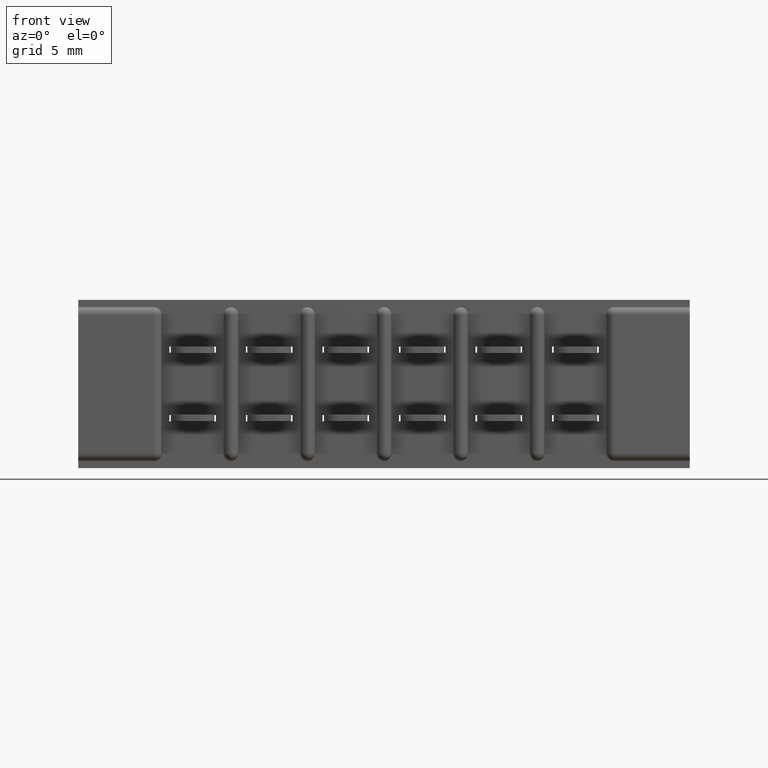
[diagram: clean part render]
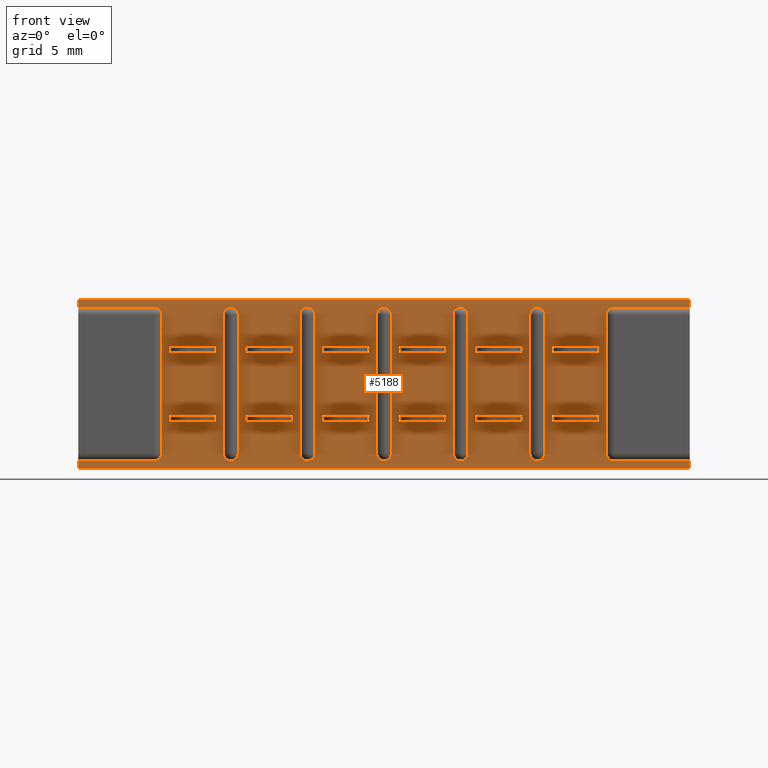
[diagram: same view with one face highlighted and labeled with its STEP entity id]
A machine part, front view. The second image highlights one B-rep face of the part: STEP entity #5188.
In plain terms, the highlighted planar face has unit normal (0, 1, 0).
Its self-contained STEP definition (entity closure, byte-faithful):
#2 = CARTESIAN_POINT ( 'NONE',  ( 1.107500000000003500, 0.03100000000000000000, -0.2480000000000003300 ) ) ;
#15 = DIRECTION ( 'NONE',  ( 0.0000000000000000000, 1.000000000000000000, 0.0000000000000000000 ) ) ;
#38 = VERTEX_POINT ( 'NONE', #3133 ) ;
#53 = DIRECTION ( 'NONE',  ( -6.030569522437654900E-016, 0.0000000000000000000, -1.000000000000000000 ) ) ;
#64 = VECTOR ( 'NONE', #206, 39.37007874015748100 ) ;
#83 = AXIS2_PLACEMENT_3D ( 'NONE', #5065, #9308, #5098 ) ;
#89 = FACE_OUTER_BOUND ( 'NONE', #4346, .T. ) ;
#91 = LINE ( 'NONE', #9347, #10635 ) ;
#95 = CIRCLE ( 'NONE', #7275, 0.01499999999999999900 ) ;
#99 = ORIENTED_EDGE ( 'NONE', *, *, #3039, .F. ) ;
#103 = DIRECTION ( 'NONE',  ( 1.000000000000000000, 0.0000000000000000000, -1.797268416884422300E-016 ) ) ;
#107 = CARTESIAN_POINT ( 'NONE',  ( 1.389000000000002900, 0.03100000000000000000, -0.01499999999999997700 ) ) ;
#119 = CIRCLE ( 'NONE', #6637, 0.01500000000000001200 ) ;
#126 = VECTOR ( 'NONE', #3026, 39.37007874015748100 ) ;
#128 = DIRECTION ( 'NONE',  ( -6.030569522437654900E-016, 0.0000000000000000000, -1.000000000000000000 ) ) ;
#144 = ORIENTED_EDGE ( 'NONE', *, *, #9622, .F. ) ;
#147 = VERTEX_POINT ( 'NONE', #9374 ) ;
#149 = CARTESIAN_POINT ( 'NONE',  ( 0.6240000000000027700, 0.03100000000000002400, -0.3130000000000000600 ) ) ;
#152 = AXIS2_PLACEMENT_3D ( 'NONE', #8679, #3777, #2966 ) ;
#153 = CARTESIAN_POINT ( 'NONE',  ( 1.092000000000003000, 0.03100000000000002400, -0.3130000000000000600 ) ) ;
#159 = EDGE_CURVE ( 'NONE', #6793, #7732, #8695, .T. ) ;
#175 = ORIENTED_EDGE ( 'NONE', *, *, #3297, .T. ) ;
#186 = CARTESIAN_POINT ( 'NONE',  ( 1.077000000000002800, 0.03100000000000000000, -0.01499999999999997700 ) ) ;
#193 = AXIS2_PLACEMENT_3D ( 'NONE', #3398, #915, #9124 ) ;
#200 = DIRECTION ( 'NONE',  ( 0.0000000000000000000, 1.000000000000000000, 0.0000000000000000000 ) ) ;
#201 = FACE_BOUND ( 'NONE', #3113, .T. ) ;
#202 = VECTOR ( 'NONE', #265, 39.37007874015748100 ) ;
#206 = DIRECTION ( 'NONE',  ( -1.000000000000000000, 0.0000000000000000000, -7.189073667537689000E-016 ) ) ;
#225 = VECTOR ( 'NONE', #783, 39.37007874015748100 ) ;
#239 = LINE ( 'NONE', #7547, #9506 ) ;
#241 = DIRECTION ( 'NONE',  ( 0.0000000000000000000, 0.0000000000000000000, 1.000000000000000000 ) ) ;
#243 = VERTEX_POINT ( 'NONE', #6351 ) ;
#265 = DIRECTION ( 'NONE',  ( 0.0000000000000000000, -0.0000000000000000000, 1.000000000000000000 ) ) ;
#320 = EDGE_LOOP ( 'NONE', ( #362, #7651, #6207, #9693, #5234, #7409 ) ) ;
#334 = VERTEX_POINT ( 'NONE', #7268 ) ;
#353 = ORIENTED_EDGE ( 'NONE', *, *, #3111, .T. ) ;
#362 = ORIENTED_EDGE ( 'NONE', *, *, #1267, .T. ) ;
#392 = DIRECTION ( 'NONE',  ( 0.0000000000000000000, -0.0000000000000000000, 1.000000000000000000 ) ) ;
#398 = EDGE_CURVE ( 'NONE', #1114, #3840, #8806, .T. ) ;
#406 = DIRECTION ( 'NONE',  ( 0.0000000000000000000, 0.0000000000000000000, 1.000000000000000000 ) ) ;
#407 = EDGE_CURVE ( 'NONE', #4585, #5116, #4406, .T. ) ;
#416 = CARTESIAN_POINT ( 'NONE',  ( 0.5940000000000029700, 0.03100000000000002400, -0.02999999999999995400 ) ) ;
#434 = LINE ( 'NONE', #5655, #8676 ) ;
#443 = AXIS2_PLACEMENT_3D ( 'NONE', #4644, #9615, #10414 ) ;
#457 = DIRECTION ( 'NONE',  ( 1.000000000000000000, 0.0000000000000000000, -1.797268416884422300E-016 ) ) ;
#470 = CIRCLE ( 'NONE', #9623, 0.01500000000000001200 ) ;
#489 = EDGE_LOOP ( 'NONE', ( #1296, #9662, #1258, #1797, #4908, #1585 ) ) ;
#494 = CARTESIAN_POINT ( 'NONE',  ( 1.263500000000001400, 0.03100000000000002400, -0.05850000000000034300 ) ) ;
#496 = VERTEX_POINT ( 'NONE', #153 ) ;
#507 = CARTESIAN_POINT ( 'NONE',  ( 0.5940000000000028600, 0.03100000000000002400, -0.4680000000000008600 ) ) ;
#514 = VECTOR ( 'NONE', #3366, 39.37007874015748100 ) ;
#519 = ORIENTED_EDGE ( 'NONE', *, *, #5228, .T. ) ;
#521 = ORIENTED_EDGE ( 'NONE', *, *, #7861, .F. ) ;
#535 = ORIENTED_EDGE ( 'NONE', *, *, #5459, .T. ) ;
#538 = VECTOR ( 'NONE', #2880, 39.37007874015748100 ) ;
#540 = VECTOR ( 'NONE', #2363, 39.37007874015748100 ) ;
#560 = ORIENTED_EDGE ( 'NONE', *, *, #7386, .F. ) ;
#567 = CARTESIAN_POINT ( 'NONE',  ( 1.374000000000002800, 0.03100000000000002400, -0.02999999999999995400 ) ) ;
#568 = CARTESIAN_POINT ( 'NONE',  ( 1.202500000000001200, 0.03100000000000002400, -0.2350000000000003800 ) ) ;
#582 = VERTEX_POINT ( 'NONE', #9606 ) ;
#589 = CARTESIAN_POINT ( 'NONE',  ( 0.5785000000000013500, 0.03100000000000000000, -0.09500000000000025100 ) ) ;
#604 = CARTESIAN_POINT ( 'NONE',  ( 1.842000000000000700, 0.03100000000000000000, -0.01499999999999997700 ) ) ;
#609 = DIRECTION ( 'NONE',  ( 0.0000000000000000000, 0.0000000000000000000, 1.000000000000000000 ) ) ;
#610 = DIRECTION ( 'NONE',  ( 0.0000000000000000000, 1.000000000000000000, 0.0000000000000000000 ) ) ;
#629 = ORIENTED_EDGE ( 'NONE', *, *, #1488, .F. ) ;
#641 = EDGE_LOOP ( 'NONE', ( #2702, #10400, #10198, #6013, #4740, #4811 ) ) ;
#655 = ORIENTED_EDGE ( 'NONE', *, *, #1459, .F. ) ;
#661 = DIRECTION ( 'NONE',  ( 0.0000000000000000000, 0.0000000000000000000, 1.000000000000000000 ) ) ;
#681 = CARTESIAN_POINT ( 'NONE',  ( 0.9210000000000028200, 0.03100000000000000000, -0.01499999999999997700 ) ) ;
#702 = AXIS2_PLACEMENT_3D ( 'NONE', #7416, #15, #8266 ) ;
#708 = EDGE_LOOP ( 'NONE', ( #5685, #6607, #3883, #6480 ) ) ;
#717 = VERTEX_POINT ( 'NONE', #4647 ) ;
#736 = EDGE_CURVE ( 'NONE', #7552, #3887, #7375, .T. ) ;
#750 = CARTESIAN_POINT ( 'NONE',  ( 0.8905000000000012900, 0.03100000000000002400, -0.2350000000000003800 ) ) ;
#757 = CARTESIAN_POINT ( 'NONE',  ( 1.077000000000002800, 0.03100000000000000000, -0.3130000000000000600 ) ) ;
#761 = EDGE_CURVE ( 'NONE', #5749, #7164, #5955, .T. ) ;
#774 = DIRECTION ( 'NONE',  ( 0.0000000000000000000, 1.000000000000000000, 0.0000000000000000000 ) ) ;
#783 = DIRECTION ( 'NONE',  ( 0.0000000000000000000, -0.0000000000000000000, 1.000000000000000000 ) ) ;
#784 = VECTOR ( 'NONE', #3490, 39.37007874015748100 ) ;
#823 = VERTEX_POINT ( 'NONE', #3246 ) ;
#826 = DIRECTION ( 'NONE',  ( -1.000000000000000000, 0.0000000000000000000, -0.0000000000000000000 ) ) ;
#839 = CARTESIAN_POINT ( 'NONE',  ( 1.248000000000002900, 0.03100000000000002400, -0.02999999999999995400 ) ) ;
#840 = CARTESIAN_POINT ( 'NONE',  ( 1.062000000000002700, 0.03100000000000002400, -0.02999999999999995400 ) ) ;
#854 = CARTESIAN_POINT ( 'NONE',  ( 1.046500000000001300, 0.03100000000000002400, -0.05850000000000034300 ) ) ;
#865 = DIRECTION ( 'NONE',  ( 0.0000000000000000000, -0.0000000000000000000, 1.000000000000000000 ) ) ;
#869 = FACE_BOUND ( 'NONE', #320, .T. ) ;
#879 = DIRECTION ( 'NONE',  ( 1.000000000000000000, 0.0000000000000000000, -1.078361050130653400E-015 ) ) ;
#893 = EDGE_CURVE ( 'NONE', #823, #38, #3772, .T. ) ;
#915 = DIRECTION ( 'NONE',  ( 0.0000000000000000000, 1.000000000000000000, 0.0000000000000000000 ) ) ;
#946 = LINE ( 'NONE', #8096, #9291 ) ;
#980 = EDGE_CURVE ( 'NONE', #1698, #6825, #8027, .T. ) ;
#982 = VERTEX_POINT ( 'NONE', #2979 ) ;
#1010 = CARTESIAN_POINT ( 'NONE',  ( 1.263500000000003400, 0.03100000000000000000, -0.2480000000000003300 ) ) ;
#1034 = CIRCLE ( 'NONE', #9966, 0.01499999999999999900 ) ;
#1036 = CARTESIAN_POINT ( 'NONE',  ( 0.7650000000000029000, 0.03100000000000000000, -0.3280000000000000100 ) ) ;
#1048 = DIRECTION ( 'NONE',  ( 0.0000000000000000000, 0.0000000000000000000, 1.000000000000000000 ) ) ;
#1055 = VERTEX_POINT ( 'NONE', #2941 ) ;
#1074 = CARTESIAN_POINT ( 'NONE',  ( 0.6090000000000027600, 0.03100000000000000000, -0.01499999999999997700 ) ) ;
#1079 = VERTEX_POINT ( 'NONE', #4517 ) ;
#1081 = EDGE_CURVE ( 'NONE', #496, #6782, #8411, .T. ) ;
#1102 = FACE_BOUND ( 'NONE', #2764, .T. ) ;
#1114 = VERTEX_POINT ( 'NONE', #3086 ) ;
#1128 = CARTESIAN_POINT ( 'NONE',  ( 1.842000000000000700, 0.03100000000000000000, 0.0000000000000000000 ) ) ;
#1131 = CARTESIAN_POINT ( 'NONE',  ( 1.218000000000002900, 0.03100000000000002400, -0.3130000000000000600 ) ) ;
#1133 = EDGE_CURVE ( 'NONE', #10437, #7969, #10602, .T. ) ;
#1163 = EDGE_CURVE ( 'NONE', #6168, #6793, #5949, .T. ) ;
#1184 = DIRECTION ( 'NONE',  ( 0.0000000000000000000, -0.0000000000000000000, 1.000000000000000000 ) ) ;
#1210 = CARTESIAN_POINT ( 'NONE',  ( 0.5785000000000013500, 0.03100000000000002400, -0.1080000000000003200 ) ) ;
#1240 = CARTESIAN_POINT ( 'NONE',  ( 0.8905000000000012900, 0.03100000000000002400, -0.05850000000000034300 ) ) ;
#1246 = VERTEX_POINT ( 'NONE', #7633 ) ;
#1248 = VERTEX_POINT ( 'NONE', #10195 ) ;
#1258 = ORIENTED_EDGE ( 'NONE', *, *, #5472, .T. ) ;
#1260 = EDGE_LOOP ( 'NONE', ( #6358, #3266, #655, #7832 ) ) ;
#1267 = EDGE_CURVE ( 'NONE', #8202, #2425, #2751, .T. ) ;
#1296 = ORIENTED_EDGE ( 'NONE', *, *, #761, .T. ) ;
#1308 = DIRECTION ( 'NONE',  ( 0.0000000000000000000, 1.000000000000000000, 0.0000000000000000000 ) ) ;
#1321 = DIRECTION ( 'NONE',  ( 0.0000000000000000000, 0.0000000000000000000, 1.000000000000000000 ) ) ;
#1340 = DIRECTION ( 'NONE',  ( 0.0000000000000000000, 0.0000000000000000000, 1.000000000000000000 ) ) ;
#1399 = DIRECTION ( 'NONE',  ( 0.0000000000000000000, 1.000000000000000000, 0.0000000000000000000 ) ) ;
#1411 = EDGE_LOOP ( 'NONE', ( #3419, #10074, #8117, #5904 ) ) ;
#1431 = AXIS2_PLACEMENT_3D ( 'NONE', #3678, #2029, #6092 ) ;
#1437 = CARTESIAN_POINT ( 'NONE',  ( 0.6240000000000030000, 0.03100000000000002400, -0.02999999999999995400 ) ) ;
#1445 = EDGE_CURVE ( 'NONE', #6788, #5703, #8527, .T. ) ;
#1459 = EDGE_CURVE ( 'NONE', #2510, #717, #2637, .T. ) ;
#1484 = ORIENTED_EDGE ( 'NONE', *, *, #5817, .F. ) ;
#1488 = EDGE_CURVE ( 'NONE', #7968, #4680, #2871, .T. ) ;
#1491 = LINE ( 'NONE', #9329, #6453 ) ;
#1497 = CARTESIAN_POINT ( 'NONE',  ( 1.358500000000001400, 0.03100000000000002400, -0.05850000000000034300 ) ) ;
#1519 = VERTEX_POINT ( 'NONE', #1725 ) ;
#1528 = CARTESIAN_POINT ( 'NONE',  ( 0.7345000000000013700, 0.03100000000000002400, -0.05850000000000034300 ) ) ;
#1541 = DIRECTION ( 'NONE',  ( 0.0000000000000000000, -0.0000000000000000000, 1.000000000000000000 ) ) ;
#1585 = ORIENTED_EDGE ( 'NONE', *, *, #6680, .T. ) ;
#1596 = VERTEX_POINT ( 'NONE', #1935 ) ;
#1605 = VECTOR ( 'NONE', #4157, 39.37007874015748100 ) ;
#1607 = ORIENTED_EDGE ( 'NONE', *, *, #736, .F. ) ;
#1618 = CARTESIAN_POINT ( 'NONE',  ( 0.2979999999999996500, 0.03100000000000000000, -0.3430000000000000300 ) ) ;
#1643 = LINE ( 'NONE', #3792, #10364 ) ;
#1664 = EDGE_CURVE ( 'NONE', #3365, #1248, #7601, .T. ) ;
#1696 = CARTESIAN_POINT ( 'NONE',  ( 1.233000000000002800, 0.03100000000000000000, -0.3130000000000000600 ) ) ;
#1697 = VERTEX_POINT ( 'NONE', #6848 ) ;
#1698 = VERTEX_POINT ( 'NONE', #2796 ) ;
#1703 = VERTEX_POINT ( 'NONE', #1131 ) ;
#1722 = AXIS2_PLACEMENT_3D ( 'NONE', #10410, #610, #7005 ) ;
#1725 = CARTESIAN_POINT ( 'NONE',  ( 0.7500000000000028900, 0.03100000000000002400, -0.02999999999999995400 ) ) ;
#1737 = EDGE_CURVE ( 'NONE', #1698, #9996, #3625, .T. ) ;
#1744 = CARTESIAN_POINT ( 'NONE',  ( 1.358500000000001400, 0.03100000000000002400, -0.1080000000000003200 ) ) ;
#1757 = DIRECTION ( 'NONE',  ( 0.0000000000000000000, 1.000000000000000000, 0.0000000000000000000 ) ) ;
#1772 = VECTOR ( 'NONE', #7904, 39.37007874015748100 ) ;
#1776 = VERTEX_POINT ( 'NONE', #9646 ) ;
#1785 = VECTOR ( 'NONE', #7085, 39.37007874015748100 ) ;
#1797 = ORIENTED_EDGE ( 'NONE', *, *, #9193, .T. ) ;
#1799 = ORIENTED_EDGE ( 'NONE', *, *, #3844, .T. ) ;
#1807 = LINE ( 'NONE', #5052, #10275 ) ;
#1810 = ORIENTED_EDGE ( 'NONE', *, *, #4667, .F. ) ;
#1823 = CARTESIAN_POINT ( 'NONE',  ( 0.9060000000000028000, 0.03100000000000002400, -0.3130000000000000600 ) ) ;
#1827 = EDGE_LOOP ( 'NONE', ( #1799, #519, #5138, #5159, #7135, #4244 ) ) ;
#1834 = LINE ( 'NONE', #7933, #538 ) ;
#1836 = CARTESIAN_POINT ( 'NONE',  ( 0.4680000000000027500, 0.03100000000000002400, -0.4680000000000008600 ) ) ;
#1837 = VERTEX_POINT ( 'NONE', #7996 ) ;
#1848 = CARTESIAN_POINT ( 'NONE',  ( 1.202500000000001200, 0.03100000000000002400, -0.05850000000000034300 ) ) ;
#1850 = LINE ( 'NONE', #3364, #1605 ) ;
#1870 = ORIENTED_EDGE ( 'NONE', *, *, #5813, .T. ) ;
#1874 = VERTEX_POINT ( 'NONE', #7761 ) ;
#1901 = VERTEX_POINT ( 'NONE', #7865 ) ;
#1918 = DIRECTION ( 'NONE',  ( 0.0000000000000000000, 0.0000000000000000000, 1.000000000000000000 ) ) ;
#1920 = CARTESIAN_POINT ( 'NONE',  ( 1.358500000000001400, 0.03100000000000002400, -0.05850000000000034300 ) ) ;
#1935 = CARTESIAN_POINT ( 'NONE',  ( 0.5785000000000013500, 0.03100000000000002400, -0.2350000000000003800 ) ) ;
#2010 = VECTOR ( 'NONE', #6052, 39.37007874015748100 ) ;
#2016 = CARTESIAN_POINT ( 'NONE',  ( 1.263500000000003400, 0.03100000000000000000, -0.09500000000000032000 ) ) ;
#2018 = VECTOR ( 'NONE', #7364, 39.37007874015748100 ) ;
#2019 = LINE ( 'NONE', #1848, #7304 ) ;
#2020 = EDGE_CURVE ( 'NONE', #6524, #10577, #10307, .T. ) ;
#2029 = DIRECTION ( 'NONE',  ( 0.0000000000000000000, 1.000000000000000000, 0.0000000000000000000 ) ) ;
#2054 = AXIS2_PLACEMENT_3D ( 'NONE', #7847, #5550, #3865 ) ;
#2072 = CARTESIAN_POINT ( 'NONE',  ( 1.107500000000003500, 0.03100000000000000000, -0.1080000000000003000 ) ) ;
#2087 = CARTESIAN_POINT ( 'NONE',  ( 0.7500000000000028900, 0.03100000000000002400, -0.4680000000000008600 ) ) ;
#2133 = DIRECTION ( 'NONE',  ( 0.0000000000000000000, 1.000000000000000000, 0.0000000000000000000 ) ) ;
#2153 = LINE ( 'NONE', #2849, #5620 ) ;
#2157 = DIRECTION ( 'NONE',  ( 0.0000000000000000000, 0.0000000000000000000, 1.000000000000000000 ) ) ;
#2173 = EDGE_CURVE ( 'NONE', #7969, #1596, #2734, .T. ) ;
#2176 = CARTESIAN_POINT ( 'NONE',  ( 1.358500000000001400, 0.03100000000000000000, -0.2480000000000004400 ) ) ;
#2205 = CARTESIAN_POINT ( 'NONE',  ( 0.9360000000000029400, 0.03100000000000002400, -0.3130000000000000600 ) ) ;
#2214 = EDGE_CURVE ( 'NONE', #7552, #5102, #1834, .T. ) ;
#2227 = EDGE_CURVE ( 'NONE', #6782, #982, #6421, .T. ) ;
#2269 = LINE ( 'NONE', #5326, #9964 ) ;
#2286 = DIRECTION ( 'NONE',  ( 0.0000000000000000000, 1.000000000000000000, 0.0000000000000000000 ) ) ;
#2289 = EDGE_LOOP ( 'NONE', ( #9727, #6732, #521, #1607 ) ) ;
#2296 = LINE ( 'NONE', #4887, #7792 ) ;
#2304 = AXIS2_PLACEMENT_3D ( 'NONE', #1696, #4016, #9051 ) ;
#2306 = VERTEX_POINT ( 'NONE', #5348 ) ;
#2346 = VECTOR ( 'NONE', #5641, 39.37007874015748100 ) ;
#2358 = CARTESIAN_POINT ( 'NONE',  ( 0.7955000000000033200, 0.03100000000000000000, -0.09500000000000032000 ) ) ;
#2363 = DIRECTION ( 'NONE',  ( 0.0000000000000000000, -0.0000000000000000000, 1.000000000000000000 ) ) ;
#2392 = CARTESIAN_POINT ( 'NONE',  ( 0.4835000000000013200, 0.03100000000000002400, -0.1080000000000003000 ) ) ;
#2421 = FACE_BOUND ( 'NONE', #641, .T. ) ;
#2425 = VERTEX_POINT ( 'NONE', #681 ) ;
#2430 = EDGE_CURVE ( 'NONE', #6718, #7371, #7848, .T. ) ;
#2440 = ORIENTED_EDGE ( 'NONE', *, *, #2020, .T. ) ;
#2470 = CARTESIAN_POINT ( 'NONE',  ( 0.4530000000000027900, 0.03100000000000000000, -0.3130000000000000600 ) ) ;
#2479 = CARTESIAN_POINT ( 'NONE',  ( 0.8905000000000012900, 0.03100000000000000000, -0.2480000000000004400 ) ) ;
#2486 = VERTEX_POINT ( 'NONE', #186 ) ;
#2503 = LINE ( 'NONE', #3638, #3262 ) ;
#2510 = VERTEX_POINT ( 'NONE', #6001 ) ;
#2519 = LINE ( 'NONE', #9988, #64 ) ;
#2541 = DIRECTION ( 'NONE',  ( 0.0000000000000000000, 0.0000000000000000000, 1.000000000000000000 ) ) ;
#2551 = EDGE_CURVE ( 'NONE', #4680, #3190, #3119, .T. ) ;
#2575 = ORIENTED_EDGE ( 'NONE', *, *, #3608, .F. ) ;
#2594 = CARTESIAN_POINT ( 'NONE',  ( 0.4680000000000028600, 0.03100000000000002400, -0.3130000000000000600 ) ) ;
#2612 = LINE ( 'NONE', #8915, #2346 ) ;
#2637 = LINE ( 'NONE', #8333, #5440 ) ;
#2665 = LINE ( 'NONE', #6413, #3546 ) ;
#2682 = CARTESIAN_POINT ( 'NONE',  ( 0.4680000000000030200, 0.03100000000000002400, -0.02999999999999995400 ) ) ;
#2693 = EDGE_LOOP ( 'NONE', ( #144, #10418, #3135, #10619 ) ) ;
#2696 = CIRCLE ( 'NONE', #83, 0.01500000000000001200 ) ;
#2702 = ORIENTED_EDGE ( 'NONE', *, *, #5621, .T. ) ;
#2715 = AXIS2_PLACEMENT_3D ( 'NONE', #757, #7999, #6346 ) ;
#2734 = LINE ( 'NONE', #6754, #9150 ) ;
#2751 = CIRCLE ( 'NONE', #8442, 0.01499999999999999900 ) ;
#2764 = EDGE_LOOP ( 'NONE', ( #7121, #5778, #7879, #5738 ) ) ;
#2796 = CARTESIAN_POINT ( 'NONE',  ( 0.7955000000000033200, 0.03100000000000000000, -0.2480000000000003300 ) ) ;
#2798 = VERTEX_POINT ( 'NONE', #2016 ) ;
#2836 = CARTESIAN_POINT ( 'NONE',  ( 1.107500000000003500, 0.03100000000000000000, -0.09500000000000032000 ) ) ;
#2849 = CARTESIAN_POINT ( 'NONE',  ( 0.9360000000000028300, 0.03100000000000002400, -0.4680000000000008600 ) ) ;
#2854 = DIRECTION ( 'NONE',  ( 0.0000000000000000000, 1.000000000000000000, 0.0000000000000000000 ) ) ;
#2870 = VERTEX_POINT ( 'NONE', #6115 ) ;
#2871 = LINE ( 'NONE', #3279, #7611 ) ;
#2880 = DIRECTION ( 'NONE',  ( 0.0000000000000000000, -0.0000000000000000000, 1.000000000000000000 ) ) ;
#2885 = AXIS2_PLACEMENT_3D ( 'NONE', #3080, #1308, #10474 ) ;
#2889 = DIRECTION ( 'NONE',  ( 1.507642380609413700E-016, -0.0000000000000000000, 1.000000000000000000 ) ) ;
#2913 = DIRECTION ( 'NONE',  ( 0.0000000000000000000, 1.000000000000000000, 0.0000000000000000000 ) ) ;
#2926 = DIRECTION ( 'NONE',  ( 0.0000000000000000000, -0.0000000000000000000, 1.000000000000000000 ) ) ;
#2941 = CARTESIAN_POINT ( 'NONE',  ( 0.7650000000000029000, 0.03100000000000000000, -0.01499999999999997700 ) ) ;
#2944 = VERTEX_POINT ( 'NONE', #8778 ) ;
#2945 = ORIENTED_EDGE ( 'NONE', *, *, #10575, .T. ) ;
#2949 = EDGE_CURVE ( 'NONE', #4295, #6239, #2612, .T. ) ;
#2950 = ORIENTED_EDGE ( 'NONE', *, *, #10447, .T. ) ;
#2966 = DIRECTION ( 'NONE',  ( 0.0000000000000000000, 0.0000000000000000000, 1.000000000000000000 ) ) ;
#2969 = AXIS2_PLACEMENT_3D ( 'NONE', #5034, #200, #5872 ) ;
#2974 = CARTESIAN_POINT ( 'NONE',  ( 0.4530000000000030700, 0.03100000000000002400, -0.02999999999999995400 ) ) ;
#2975 = VECTOR ( 'NONE', #4290, 39.37007874015748100 ) ;
#2979 = CARTESIAN_POINT ( 'NONE',  ( 1.062000000000002700, 0.03100000000000002400, -0.3130000000000000600 ) ) ;
#3016 = EDGE_CURVE ( 'NONE', #1519, #1055, #1034, .T. ) ;
#3026 = DIRECTION ( 'NONE',  ( 1.000000000000000000, 0.0000000000000000000, -1.797268416884422300E-016 ) ) ;
#3039 = EDGE_CURVE ( 'NONE', #6099, #4808, #4895, .T. ) ;
#3041 = CARTESIAN_POINT ( 'NONE',  ( 1.374000000000002800, 0.03100000000000002400, -0.4680000000000008600 ) ) ;
#3051 = VECTOR ( 'NONE', #457, 39.37007874015748100 ) ;
#3056 = PLANE ( 'NONE',  #1722 ) ;
#3080 = CARTESIAN_POINT ( 'NONE',  ( 1.389000000000002900, 0.03100000000000000000, -0.02999999999999997800 ) ) ;
#3086 = CARTESIAN_POINT ( 'NONE',  ( 1.107500000000003500, 0.03100000000000000000, -0.2480000000000003300 ) ) ;
#3099 = CARTESIAN_POINT ( 'NONE',  ( 0.6090000000000027600, 0.03100000000000000000, -0.02999999999999997800 ) ) ;
#3101 = CARTESIAN_POINT ( 'NONE',  ( 0.7650000000000029000, 0.03100000000000000000, -0.02999999999999997800 ) ) ;
#3111 = EDGE_CURVE ( 'NONE', #2870, #1079, #7324, .T. ) ;
#3113 = EDGE_LOOP ( 'NONE', ( #4013, #9376, #5993, #7244 ) ) ;
#3119 = LINE ( 'NONE', #1497, #9387 ) ;
#3133 = CARTESIAN_POINT ( 'NONE',  ( 1.233000000000003000, 0.03100000000000000000, -0.3280000000000000100 ) ) ;
#3135 = ORIENTED_EDGE ( 'NONE', *, *, #398, .T. ) ;
#3139 = DIRECTION ( 'NONE',  ( 1.000000000000000000, 0.0000000000000000000, -1.797268416884422300E-016 ) ) ;
#3158 = VERTEX_POINT ( 'NONE', #7360 ) ;
#3163 = CARTESIAN_POINT ( 'NONE',  ( 0.9060000000000028000, 0.03100000000000002400, -0.4680000000000008600 ) ) ;
#3180 = DIRECTION ( 'NONE',  ( -1.000000000000000000, -0.0000000000000000000, -0.0000000000000000000 ) ) ;
#3184 = CARTESIAN_POINT ( 'NONE',  ( 1.233000000000003000, 0.03100000000000000000, -0.01499999999999997700 ) ) ;
#3190 = VERTEX_POINT ( 'NONE', #7595 ) ;
#3240 = CARTESIAN_POINT ( 'NONE',  ( 0.4835000000000033700, 0.03100000000000000000, -0.09500000000000032000 ) ) ;
#3246 = CARTESIAN_POINT ( 'NONE',  ( 1.248000000000002700, 0.03100000000000002400, -0.3130000000000000600 ) ) ;
#3253 = DIRECTION ( 'NONE',  ( 1.507642380609413700E-016, -0.0000000000000000000, 1.000000000000000000 ) ) ;
#3262 = VECTOR ( 'NONE', #3747, 39.37007874015748100 ) ;
#3266 = ORIENTED_EDGE ( 'NONE', *, *, #9559, .F. ) ;
#3279 = CARTESIAN_POINT ( 'NONE',  ( 1.263500000000003400, 0.03100000000000000000, -0.1080000000000003000 ) ) ;
#3282 = VECTOR ( 'NONE', #8740, 39.37007874015748100 ) ;
#3283 = EDGE_CURVE ( 'NONE', #7185, #6788, #5136, .T. ) ;
#3297 = EDGE_CURVE ( 'NONE', #8913, #4720, #6260, .T. ) ;
#3302 = EDGE_CURVE ( 'NONE', #7307, #3513, #5267, .T. ) ;
#3304 = CARTESIAN_POINT ( 'NONE',  ( 0.9515000000000024500, 0.03100000000000002400, -0.2350000000000003800 ) ) ;
#3308 = CARTESIAN_POINT ( 'NONE',  ( 0.9515000000000013400, 0.03100000000000002400, -0.05850000000000034300 ) ) ;
#3311 = FACE_BOUND ( 'NONE', #708, .T. ) ;
#3312 = VECTOR ( 'NONE', #9429, 39.37007874015748100 ) ;
#3322 = VECTOR ( 'NONE', #8884, 39.37007874015748100 ) ;
#3327 = ORIENTED_EDGE ( 'NONE', *, *, #159, .T. ) ;
#3346 = ORIENTED_EDGE ( 'NONE', *, *, #10277, .T. ) ;
#3364 = CARTESIAN_POINT ( 'NONE',  ( 0.9515000000000033400, 0.03100000000000000000, -0.09500000000000032000 ) ) ;
#3365 = VERTEX_POINT ( 'NONE', #10154 ) ;
#3366 = DIRECTION ( 'NONE',  ( 0.0000000000000000000, -0.0000000000000000000, 1.000000000000000000 ) ) ;
#3382 = EDGE_CURVE ( 'NONE', #3158, #6847, #9001, .T. ) ;
#3387 = CIRCLE ( 'NONE', #152, 0.01499999999999999900 ) ;
#3398 = CARTESIAN_POINT ( 'NONE',  ( 0.9210000000000029300, 0.03100000000000000000, -0.3130000000000000600 ) ) ;
#3414 = CIRCLE ( 'NONE', #193, 0.01500000000000001200 ) ;
#3416 = DIRECTION ( 'NONE',  ( 0.0000000000000000000, -0.0000000000000000000, 1.000000000000000000 ) ) ;
#3419 = ORIENTED_EDGE ( 'NONE', *, *, #3302, .T. ) ;
#3452 = VECTOR ( 'NONE', #1340, 39.37007874015748100 ) ;
#3460 = CARTESIAN_POINT ( 'NONE',  ( 1.202500000000001200, 0.03100000000000002400, -0.05850000000000034300 ) ) ;
#3471 = EDGE_CURVE ( 'NONE', #1874, #2510, #9234, .T. ) ;
#3477 = DIRECTION ( 'NONE',  ( -1.000000000000000000, 0.0000000000000000000, -7.189073667537689000E-016 ) ) ;
#3490 = DIRECTION ( 'NONE',  ( -6.030569522437654900E-016, 0.0000000000000000000, -1.000000000000000000 ) ) ;
#3511 = LINE ( 'NONE', #3460, #4795 ) ;
#3513 = VERTEX_POINT ( 'NONE', #3240 ) ;
#3522 = CARTESIAN_POINT ( 'NONE',  ( 0.9060000000000028000, 0.03100000000000002400, -0.02999999999999995400 ) ) ;
#3527 = DIRECTION ( 'NONE',  ( -6.030569522437654900E-016, 0.0000000000000000000, -1.000000000000000000 ) ) ;
#3532 = CARTESIAN_POINT ( 'NONE',  ( 0.7650000000000029000, 0.03100000000000000000, -0.3130000000000000600 ) ) ;
#3543 = EDGE_CURVE ( 'NONE', #334, #496, #1807, .T. ) ;
#3546 = VECTOR ( 'NONE', #1541, 39.37007874015748100 ) ;
#3548 = FACE_BOUND ( 'NONE', #489, .T. ) ;
#3566 = EDGE_CURVE ( 'NONE', #1874, #1697, #6385, .T. ) ;
#3608 = EDGE_CURVE ( 'NONE', #3190, #2798, #239, .T. ) ;
#3625 = LINE ( 'NONE', #4555, #7082 ) ;
#3638 = CARTESIAN_POINT ( 'NONE',  ( 0.9515000000000013400, 0.03100000000000002400, -0.05850000000000034300 ) ) ;
#3648 = LINE ( 'NONE', #4848, #7754 ) ;
#3654 = ORIENTED_EDGE ( 'NONE', *, *, #6892, .F. ) ;
#3661 = EDGE_CURVE ( 'NONE', #5114, #6524, #119, .T. ) ;
#3678 = CARTESIAN_POINT ( 'NONE',  ( 0.6090000000000027600, 0.03100000000000000000, -0.3130000000000000600 ) ) ;
#3703 = EDGE_CURVE ( 'NONE', #10577, #9659, #6122, .T. ) ;
#3718 = VECTOR ( 'NONE', #3416, 39.37007874015748100 ) ;
#3747 = DIRECTION ( 'NONE',  ( 0.0000000000000000000, -0.0000000000000000000, 1.000000000000000000 ) ) ;
#3758 = DIRECTION ( 'NONE',  ( -1.000000000000000000, -0.0000000000000000000, -0.0000000000000000000 ) ) ;
#3760 = AXIS2_PLACEMENT_3D ( 'NONE', #8742, #2913, #2157 ) ;
#3772 = CIRCLE ( 'NONE', #2304, 0.01500000000000001200 ) ;
#3777 = DIRECTION ( 'NONE',  ( 0.0000000000000000000, 1.000000000000000000, 0.0000000000000000000 ) ) ;
#3790 = LINE ( 'NONE', #9934, #7901 ) ;
#3792 = CARTESIAN_POINT ( 'NONE',  ( 1.248000000000002700, 0.03100000000000002400, -0.4680000000000008600 ) ) ;
#3793 = VERTEX_POINT ( 'NONE', #750 ) ;
#3799 = FACE_BOUND ( 'NONE', #1827, .T. ) ;
#3822 = VERTEX_POINT ( 'NONE', #4171 ) ;
#3840 = VERTEX_POINT ( 'NONE', #6935 ) ;
#3844 = EDGE_CURVE ( 'NONE', #5462, #2486, #7173, .T. ) ;
#3865 = DIRECTION ( 'NONE',  ( 0.0000000000000000000, 0.0000000000000000000, 1.000000000000000000 ) ) ;
#3876 = DIRECTION ( 'NONE',  ( 0.0000000000000000000, 1.000000000000000000, 0.0000000000000000000 ) ) ;
#3882 = ORIENTED_EDGE ( 'NONE', *, *, #9154, .T. ) ;
#3883 = ORIENTED_EDGE ( 'NONE', *, *, #10238, .T. ) ;
#3887 = VERTEX_POINT ( 'NONE', #7881 ) ;
#3934 = LINE ( 'NONE', #7741, #5857 ) ;
#3949 = DIRECTION ( 'NONE',  ( 0.0000000000000000000, 0.0000000000000000000, 1.000000000000000000 ) ) ;
#4008 = CARTESIAN_POINT ( 'NONE',  ( 1.233000000000003000, 0.03100000000000002400, -0.02999999999999995400 ) ) ;
#4013 = ORIENTED_EDGE ( 'NONE', *, *, #5766, .F. ) ;
#4016 = DIRECTION ( 'NONE',  ( 0.0000000000000000000, 1.000000000000000000, 0.0000000000000000000 ) ) ;
#4020 = CARTESIAN_POINT ( 'NONE',  ( 1.263500000000003400, 0.03100000000000000000, -0.2480000000000003300 ) ) ;
#4036 = CARTESIAN_POINT ( 'NONE',  ( 0.4530000000000027900, 0.03100000000000000000, -0.3280000000000000100 ) ) ;
#4051 = EDGE_CURVE ( 'NONE', #38, #1703, #2696, .T. ) ;
#4064 = FACE_BOUND ( 'NONE', #8651, .T. ) ;
#4130 = CARTESIAN_POINT ( 'NONE',  ( 1.544000000000000700, 0.03100000000000000000, -0.3280000000000000100 ) ) ;
#4134 = CIRCLE ( 'NONE', #10492, 0.01499999999999999900 ) ;
#4157 = DIRECTION ( 'NONE',  ( -1.000000000000000000, 0.0000000000000000000, -7.189073667537689000E-016 ) ) ;
#4160 = EDGE_CURVE ( 'NONE', #7062, #10018, #10532, .T. ) ;
#4169 = CARTESIAN_POINT ( 'NONE',  ( 0.7345000000000013700, 0.03100000000000002400, -0.1080000000000003200 ) ) ;
#4171 = CARTESIAN_POINT ( 'NONE',  ( 0.7345000000000013700, 0.03100000000000000000, -0.2480000000000004400 ) ) ;
#4175 = VECTOR ( 'NONE', #5082, 39.37007874015748100 ) ;
#4191 = LINE ( 'NONE', #9733, #3322 ) ;
#4192 = DIRECTION ( 'NONE',  ( 0.0000000000000000000, -0.0000000000000000000, 1.000000000000000000 ) ) ;
#4200 = LINE ( 'NONE', #5004, #2018 ) ;
#4244 = ORIENTED_EDGE ( 'NONE', *, *, #6397, .T. ) ;
#4275 = CARTESIAN_POINT ( 'NONE',  ( 0.2979999999999999900, 0.03100000000000000000, 0.0000000000000000000 ) ) ;
#4278 = CIRCLE ( 'NONE', #702, 0.01500000000000001200 ) ;
#4290 = DIRECTION ( 'NONE',  ( -6.030569522437654900E-016, 0.0000000000000000000, -1.000000000000000000 ) ) ;
#4295 = VERTEX_POINT ( 'NONE', #10567 ) ;
#4303 = DIRECTION ( 'NONE',  ( -1.000000000000000000, 0.0000000000000000000, -0.0000000000000000000 ) ) ;
#4306 = CARTESIAN_POINT ( 'NONE',  ( 0.9210000000000028200, 0.03100000000000000000, -0.3130000000000000600 ) ) ;
#4309 = FACE_BOUND ( 'NONE', #8107, .T. ) ;
#4340 = EDGE_CURVE ( 'NONE', #6765, #3513, #6241, .T. ) ;
#4346 = EDGE_LOOP ( 'NONE', ( #9947, #8113, #3882, #8665, #2440, #7286, #560, #6861, #3327, #10292, #3654, #3346, #175, #535, #8323, #7616 ) ) ;
#4382 = VERTEX_POINT ( 'NONE', #8297 ) ;
#4400 = LINE ( 'NONE', #9440, #10613 ) ;
#4406 = LINE ( 'NONE', #6770, #4175 ) ;
#4417 = FACE_BOUND ( 'NONE', #1411, .T. ) ;
#4463 = DIRECTION ( 'NONE',  ( 0.0000000000000000000, 1.000000000000000000, 0.0000000000000000000 ) ) ;
#4470 = DIRECTION ( 'NONE',  ( 1.000000000000000000, 0.0000000000000000000, -1.078361050130653400E-015 ) ) ;
#4494 = VERTEX_POINT ( 'NONE', #1823 ) ;
#4517 = CARTESIAN_POINT ( 'NONE',  ( 1.107500000000003500, 0.03100000000000000000, -0.09500000000000032000 ) ) ;
#4545 = ORIENTED_EDGE ( 'NONE', *, *, #3283, .T. ) ;
#4550 = EDGE_CURVE ( 'NONE', #1246, #10050, #4577, .T. ) ;
#4555 = CARTESIAN_POINT ( 'NONE',  ( 0.7955000000000014300, 0.03100000000000002400, -0.05850000000000034300 ) ) ;
#4577 = LINE ( 'NONE', #854, #225 ) ;
#4585 = VERTEX_POINT ( 'NONE', #4036 ) ;
#4588 = VECTOR ( 'NONE', #5189, 39.37007874015748100 ) ;
#4617 = VERTEX_POINT ( 'NONE', #1618 ) ;
#4644 = CARTESIAN_POINT ( 'NONE',  ( 0.7650000000000030100, 0.03100000000000002400, -0.02999999999999995400 ) ) ;
#4647 = CARTESIAN_POINT ( 'NONE',  ( 1.046500000000001300, 0.03100000000000000000, -0.09500000000000025100 ) ) ;
#4654 = CARTESIAN_POINT ( 'NONE',  ( 0.4835000000000033700, 0.03100000000000000000, -0.2480000000000003300 ) ) ;
#4661 = ORIENTED_EDGE ( 'NONE', *, *, #7878, .F. ) ;
#4667 = EDGE_CURVE ( 'NONE', #243, #10158, #2019, .T. ) ;
#4680 = VERTEX_POINT ( 'NONE', #1744 ) ;
#4684 = CARTESIAN_POINT ( 'NONE',  ( 1.107500000000003500, 0.03100000000000000000, -0.2350000000000003800 ) ) ;
#4720 = VERTEX_POINT ( 'NONE', #2594 ) ;
#4740 = ORIENTED_EDGE ( 'NONE', *, *, #4051, .T. ) ;
#4752 = VECTOR ( 'NONE', #1321, 39.37007874015748100 ) ;
#4759 = DIRECTION ( 'NONE',  ( 1.507642380609413700E-016, -0.0000000000000000000, 1.000000000000000000 ) ) ;
#4771 = EDGE_CURVE ( 'NONE', #9808, #2306, #9103, .T. ) ;
#4794 = EDGE_CURVE ( 'NONE', #147, #6691, #2153, .T. ) ;
#4795 = VECTOR ( 'NONE', #4192, 39.37007874015748100 ) ;
#4799 = ORIENTED_EDGE ( 'NONE', *, *, #1133, .F. ) ;
#4808 = VERTEX_POINT ( 'NONE', #7638 ) ;
#4811 = ORIENTED_EDGE ( 'NONE', *, *, #9062, .T. ) ;
#4842 = EDGE_CURVE ( 'NONE', #10018, #4295, #10380, .T. ) ;
#4848 = CARTESIAN_POINT ( 'NONE',  ( 1.218000000000002900, 0.03100000000000002400, -0.4680000000000008600 ) ) ;
#4864 = EDGE_CURVE ( 'NONE', #3822, #9808, #9982, .T. ) ;
#4876 = EDGE_CURVE ( 'NONE', #7307, #8237, #9197, .T. ) ;
#4887 = CARTESIAN_POINT ( 'NONE',  ( 0.6240000000000026600, 0.03100000000000002400, -0.4680000000000008600 ) ) ;
#4892 = CARTESIAN_POINT ( 'NONE',  ( 1.107500000000001300, 0.03100000000000002400, -0.05850000000000034300 ) ) ;
#4895 = LINE ( 'NONE', #1528, #514 ) ;
#4908 = ORIENTED_EDGE ( 'NONE', *, *, #1664, .T. ) ;
#4955 = DIRECTION ( 'NONE',  ( 1.507642380609413700E-016, -0.0000000000000000000, 1.000000000000000000 ) ) ;
#4964 = FACE_BOUND ( 'NONE', #5377, .T. ) ;
#4990 = DIRECTION ( 'NONE',  ( 0.0000000000000000000, -0.0000000000000000000, 1.000000000000000000 ) ) ;
#5004 = CARTESIAN_POINT ( 'NONE',  ( 1.842000000000000700, 0.03100000000000000000, -0.01499999999999997700 ) ) ;
#5034 = CARTESIAN_POINT ( 'NONE',  ( 1.233000000000003000, 0.03100000000000000000, -0.02999999999999997800 ) ) ;
#5036 = ORIENTED_EDGE ( 'NONE', *, *, #1445, .T. ) ;
#5046 = DIRECTION ( 'NONE',  ( 1.000000000000000000, 0.0000000000000000000, -1.078361050130653400E-015 ) ) ;
#5052 = CARTESIAN_POINT ( 'NONE',  ( 1.092000000000002700, 0.03100000000000002400, -0.4680000000000008600 ) ) ;
#5058 = EDGE_CURVE ( 'NONE', #7164, #6544, #95, .T. ) ;
#5065 = CARTESIAN_POINT ( 'NONE',  ( 1.233000000000003000, 0.03100000000000000000, -0.3130000000000000600 ) ) ;
#5077 = EDGE_CURVE ( 'NONE', #2944, #582, #4191, .T. ) ;
#5082 = DIRECTION ( 'NONE',  ( -1.000000000000000000, -0.0000000000000000000, -0.0000000000000000000 ) ) ;
#5096 = CIRCLE ( 'NONE', #2969, 0.01499999999999999900 ) ;
#5098 = DIRECTION ( 'NONE',  ( 0.0000000000000000000, 0.0000000000000000000, 1.000000000000000000 ) ) ;
#5102 = VERTEX_POINT ( 'NONE', #2358 ) ;
#5114 = VERTEX_POINT ( 'NONE', #9349 ) ;
#5116 = VERTEX_POINT ( 'NONE', #9471 ) ;
#5132 = CARTESIAN_POINT ( 'NONE',  ( 0.6395000000000034000, 0.03100000000000000000, -0.2350000000000003800 ) ) ;
#5136 = LINE ( 'NONE', #7526, #2975 ) ;
#5138 = ORIENTED_EDGE ( 'NONE', *, *, #3543, .T. ) ;
#5159 = ORIENTED_EDGE ( 'NONE', *, *, #1081, .T. ) ;
#5161 = EDGE_CURVE ( 'NONE', #2870, #243, #5974, .T. ) ;
#5163 = CARTESIAN_POINT ( 'NONE',  ( 1.544000000000000700, 0.03100000000000000000, -0.01499999999999997700 ) ) ;
#5188 = ADVANCED_FACE ( 'NONE', ( #2421, #89, #7126, #7395, #869, #201, #8710, #3548, #4064, #4417, #6852, #9305, #4309, #7912, #3311, #3799, #4964, #1102 ), #3056, .F. ) ;
#5189 = DIRECTION ( 'NONE',  ( 1.000000000000000000, 0.0000000000000000000, -1.078361050130653400E-015 ) ) ;
#5194 = CARTESIAN_POINT ( 'NONE',  ( 0.9210000000000028200, 0.03100000000000000000, -0.02999999999999997800 ) ) ;
#5228 = EDGE_CURVE ( 'NONE', #2486, #334, #10101, .T. ) ;
#5234 = ORIENTED_EDGE ( 'NONE', *, *, #8879, .T. ) ;
#5243 = DIRECTION ( 'NONE',  ( 0.0000000000000000000, 0.0000000000000000000, 1.000000000000000000 ) ) ;
#5267 = LINE ( 'NONE', #5841, #6769 ) ;
#5275 = ORIENTED_EDGE ( 'NONE', *, *, #2173, .F. ) ;
#5276 = ORIENTED_EDGE ( 'NONE', *, *, #5494, .F. ) ;
#5300 = VECTOR ( 'NONE', #8785, 39.37007874015748100 ) ;
#5319 = CARTESIAN_POINT ( 'NONE',  ( 0.7345000000000013700, 0.03100000000000002400, -0.05850000000000034300 ) ) ;
#5326 = CARTESIAN_POINT ( 'NONE',  ( 0.8905000000000012900, 0.03100000000000002400, -0.05850000000000034300 ) ) ;
#5331 = VECTOR ( 'NONE', #3139, 39.37007874015748100 ) ;
#5339 = EDGE_CURVE ( 'NONE', #4494, #8202, #8199, .T. ) ;
#5346 = EDGE_LOOP ( 'NONE', ( #7511, #5276, #2950, #5989 ) ) ;
#5348 = CARTESIAN_POINT ( 'NONE',  ( 0.6395000000000024000, 0.03100000000000002400, -0.2350000000000003800 ) ) ;
#5377 = EDGE_LOOP ( 'NONE', ( #5475, #2575, #10037, #629 ) ) ;
#5380 = CARTESIAN_POINT ( 'NONE',  ( 1.544000000000000700, 0.03100000000000000000, -0.3430000000000000300 ) ) ;
#5386 = DIRECTION ( 'NONE',  ( 0.0000000000000000000, -0.0000000000000000000, 1.000000000000000000 ) ) ;
#5401 = CARTESIAN_POINT ( 'NONE',  ( 1.389000000000002900, 0.03100000000000000000, -0.3130000000000000600 ) ) ;
#5435 = DIRECTION ( 'NONE',  ( 0.0000000000000000000, 1.000000000000000000, 0.0000000000000000000 ) ) ;
#5439 = DIRECTION ( 'NONE',  ( 1.000000000000000000, 0.0000000000000000000, -1.078361050130653400E-015 ) ) ;
#5440 = VECTOR ( 'NONE', #4990, 39.37007874015748100 ) ;
#5459 = EDGE_CURVE ( 'NONE', #4720, #4585, #470, .T. ) ;
#5462 = VERTEX_POINT ( 'NONE', #840 ) ;
#5466 = AXIS2_PLACEMENT_3D ( 'NONE', #6565, #1757, #7350 ) ;
#5472 = EDGE_CURVE ( 'NONE', #6544, #8363, #2296, .T. ) ;
#5475 = ORIENTED_EDGE ( 'NONE', *, *, #8291, .T. ) ;
#5494 = EDGE_CURVE ( 'NONE', #1776, #3822, #9726, .T. ) ;
#5550 = DIRECTION ( 'NONE',  ( 0.0000000000000000000, 1.000000000000000000, 0.0000000000000000000 ) ) ;
#5585 = DIRECTION ( 'NONE',  ( 0.0000000000000000000, 0.0000000000000000000, 1.000000000000000000 ) ) ;
#5596 = CARTESIAN_POINT ( 'NONE',  ( 0.4835000000000033700, 0.03100000000000000000, -0.09500000000000032000 ) ) ;
#5608 = LINE ( 'NONE', #8597, #7136 ) ;
#5620 = VECTOR ( 'NONE', #3527, 39.37007874015748100 ) ;
#5621 = EDGE_CURVE ( 'NONE', #7391, #6718, #5096, .T. ) ;
#5641 = DIRECTION ( 'NONE',  ( -1.000000000000000000, 0.0000000000000000000, -0.0000000000000000000 ) ) ;
#5655 = CARTESIAN_POINT ( 'NONE',  ( 0.7955000000000033200, 0.03100000000000000000, -0.2350000000000003800 ) ) ;
#5659 = DIRECTION ( 'NONE',  ( 1.000000000000000000, 0.0000000000000000000, -1.078361050130653400E-015 ) ) ;
#5685 = ORIENTED_EDGE ( 'NONE', *, *, #4550, .F. ) ;
#5687 = EDGE_CURVE ( 'NONE', #2944, #6099, #7140, .T. ) ;
#5689 = CARTESIAN_POINT ( 'NONE',  ( 1.544000000000000700, 0.03100000000000000000, -0.3430000000000000300 ) ) ;
#5703 = VERTEX_POINT ( 'NONE', #1036 ) ;
#5720 = VECTOR ( 'NONE', #865, 39.37007874015748100 ) ;
#5738 = ORIENTED_EDGE ( 'NONE', *, *, #2949, .F. ) ;
#5749 = VERTEX_POINT ( 'NONE', #416 ) ;
#5766 = EDGE_CURVE ( 'NONE', #6825, #3793, #7913, .T. ) ;
#5777 = CARTESIAN_POINT ( 'NONE',  ( 0.6395000000000034000, 0.03100000000000000000, -0.2480000000000003300 ) ) ;
#5778 = ORIENTED_EDGE ( 'NONE', *, *, #4160, .F. ) ;
#5813 = EDGE_CURVE ( 'NONE', #10437, #8594, #91, .T. ) ;
#5817 = EDGE_CURVE ( 'NONE', #10158, #1079, #9307, .T. ) ;
#5838 = VECTOR ( 'NONE', #2889, 39.37007874015748100 ) ;
#5841 = CARTESIAN_POINT ( 'NONE',  ( 0.4835000000000013200, 0.03100000000000002400, -0.05850000000000034300 ) ) ;
#5857 = VECTOR ( 'NONE', #8552, 39.37007874015748100 ) ;
#5872 = DIRECTION ( 'NONE',  ( 0.0000000000000000000, 0.0000000000000000000, 1.000000000000000000 ) ) ;
#5892 = ORIENTED_EDGE ( 'NONE', *, *, #7842, .T. ) ;
#5904 = ORIENTED_EDGE ( 'NONE', *, *, #4876, .F. ) ;
#5949 = LINE ( 'NONE', #5689, #6828 ) ;
#5955 = CIRCLE ( 'NONE', #9345, 0.01499999999999999900 ) ;
#5974 = LINE ( 'NONE', #2072, #3051 ) ;
#5985 = CARTESIAN_POINT ( 'NONE',  ( 1.263500000000002500, 0.03100000000000002400, -0.2350000000000003800 ) ) ;
#5989 = ORIENTED_EDGE ( 'NONE', *, *, #4771, .F. ) ;
#5993 = ORIENTED_EDGE ( 'NONE', *, *, #1737, .T. ) ;
#6001 = CARTESIAN_POINT ( 'NONE',  ( 1.046500000000001300, 0.03100000000000002400, -0.1080000000000003200 ) ) ;
#6013 = ORIENTED_EDGE ( 'NONE', *, *, #893, .T. ) ;
#6052 = DIRECTION ( 'NONE',  ( 1.000000000000000000, 0.0000000000000000000, -1.797268416884422300E-016 ) ) ;
#6067 = VECTOR ( 'NONE', #5386, 39.37007874015748100 ) ;
#6092 = DIRECTION ( 'NONE',  ( 0.0000000000000000000, 0.0000000000000000000, 1.000000000000000000 ) ) ;
#6093 = VECTOR ( 'NONE', #879, 39.37007874015748100 ) ;
#6099 = VERTEX_POINT ( 'NONE', #4169 ) ;
#6113 = CARTESIAN_POINT ( 'NONE',  ( 0.4835000000000033700, 0.03100000000000000000, -0.1080000000000003000 ) ) ;
#6115 = CARTESIAN_POINT ( 'NONE',  ( 1.107500000000001300, 0.03100000000000002400, -0.1080000000000003000 ) ) ;
#6122 = CIRCLE ( 'NONE', #2885, 0.01499999999999999900 ) ;
#6134 = DIRECTION ( 'NONE',  ( 0.0000000000000000000, 0.0000000000000000000, 1.000000000000000000 ) ) ;
#6168 = VERTEX_POINT ( 'NONE', #5163 ) ;
#6186 = DIRECTION ( 'NONE',  ( -1.000000000000000000, 0.0000000000000000000, 0.0000000000000000000 ) ) ;
#6188 = VECTOR ( 'NONE', #5659, 39.37007874015748100 ) ;
#6207 = ORIENTED_EDGE ( 'NONE', *, *, #4794, .T. ) ;
#6233 = CARTESIAN_POINT ( 'NONE',  ( 0.5785000000000013500, 0.03100000000000002400, -0.05850000000000034300 ) ) ;
#6239 = VERTEX_POINT ( 'NONE', #5985 ) ;
#6240 = LINE ( 'NONE', #4684, #1785 ) ;
#6241 = LINE ( 'NONE', #5596, #10255 ) ;
#6249 = EDGE_CURVE ( 'NONE', #9201, #3840, #6240, .T. ) ;
#6260 = LINE ( 'NONE', #1836, #784 ) ;
#6288 = DIRECTION ( 'NONE',  ( 0.0000000000000000000, 1.000000000000000000, 0.0000000000000000000 ) ) ;
#6292 = CARTESIAN_POINT ( 'NONE',  ( 0.6395000000000015100, 0.03100000000000002400, -0.05850000000000034300 ) ) ;
#6342 = DIRECTION ( 'NONE',  ( 0.0000000000000000000, -0.0000000000000000000, 1.000000000000000000 ) ) ;
#6346 = DIRECTION ( 'NONE',  ( 0.0000000000000000000, 0.0000000000000000000, 1.000000000000000000 ) ) ;
#6347 = CARTESIAN_POINT ( 'NONE',  ( 1.202500000000001200, 0.03100000000000000000, -0.2480000000000004400 ) ) ;
#6351 = CARTESIAN_POINT ( 'NONE',  ( 1.202500000000001200, 0.03100000000000002400, -0.1080000000000003200 ) ) ;
#6357 = VECTOR ( 'NONE', #7591, 39.37007874015748100 ) ;
#6358 = ORIENTED_EDGE ( 'NONE', *, *, #3566, .T. ) ;
#6385 = LINE ( 'NONE', #3308, #3718 ) ;
#6387 = DIRECTION ( 'NONE',  ( 0.0000000000000000000, 0.0000000000000000000, 1.000000000000000000 ) ) ;
#6397 = EDGE_CURVE ( 'NONE', #982, #5462, #8853, .T. ) ;
#6413 = CARTESIAN_POINT ( 'NONE',  ( 1.263500000000001400, 0.03100000000000002400, -0.05850000000000034300 ) ) ;
#6421 = CIRCLE ( 'NONE', #3760, 0.01500000000000001200 ) ;
#6446 = DIRECTION ( 'NONE',  ( -1.000000000000000000, 0.0000000000000000000, -0.0000000000000000000 ) ) ;
#6453 = VECTOR ( 'NONE', #8681, 39.37007874015748100 ) ;
#6480 = ORIENTED_EDGE ( 'NONE', *, *, #7599, .F. ) ;
#6491 = ORIENTED_EDGE ( 'NONE', *, *, #8902, .T. ) ;
#6520 = VERTEX_POINT ( 'NONE', #9301 ) ;
#6524 = VERTEX_POINT ( 'NONE', #9650 ) ;
#6544 = VERTEX_POINT ( 'NONE', #1437 ) ;
#6565 = CARTESIAN_POINT ( 'NONE',  ( 0.7650000000000029000, 0.03100000000000000000, -0.3130000000000000600 ) ) ;
#6607 = ORIENTED_EDGE ( 'NONE', *, *, #6942, .F. ) ;
#6637 = AXIS2_PLACEMENT_3D ( 'NONE', #5401, #2133, #7147 ) ;
#6645 = VERTEX_POINT ( 'NONE', #3304 ) ;
#6661 = CIRCLE ( 'NONE', #443, 0.01499999999999999900 ) ;
#6674 = EDGE_CURVE ( 'NONE', #8237, #6765, #6733, .T. ) ;
#6680 = EDGE_CURVE ( 'NONE', #1248, #5749, #6875, .T. ) ;
#6691 = VERTEX_POINT ( 'NONE', #2205 ) ;
#6718 = VERTEX_POINT ( 'NONE', #3184 ) ;
#6732 = ORIENTED_EDGE ( 'NONE', *, *, #8476, .F. ) ;
#6733 = LINE ( 'NONE', #6233, #3452 ) ;
#6754 = CARTESIAN_POINT ( 'NONE',  ( 0.5785000000000013500, 0.03100000000000002400, -0.05850000000000034300 ) ) ;
#6765 = VERTEX_POINT ( 'NONE', #589 ) ;
#6769 = VECTOR ( 'NONE', #8623, 39.37007874015748100 ) ;
#6770 = CARTESIAN_POINT ( 'NONE',  ( 1.842000000000000700, 0.03100000000000000000, -0.3280000000000000100 ) ) ;
#6782 = VERTEX_POINT ( 'NONE', #7254 ) ;
#6788 = VERTEX_POINT ( 'NONE', #7178 ) ;
#6793 = VERTEX_POINT ( 'NONE', #8851 ) ;
#6825 = VERTEX_POINT ( 'NONE', #2479 ) ;
#6828 = VECTOR ( 'NONE', #5585, 39.37007874015748100 ) ;
#6847 = VERTEX_POINT ( 'NONE', #4130 ) ;
#6848 = CARTESIAN_POINT ( 'NONE',  ( 0.9515000000000033400, 0.03100000000000000000, -0.09500000000000032000 ) ) ;
#6852 = FACE_BOUND ( 'NONE', #8001, .T. ) ;
#6861 = ORIENTED_EDGE ( 'NONE', *, *, #1163, .T. ) ;
#6863 = EDGE_LOOP ( 'NONE', ( #353, #1484, #1810, #7309 ) ) ;
#6875 = LINE ( 'NONE', #507, #1772 ) ;
#6892 = EDGE_CURVE ( 'NONE', #9956, #9335, #4200, .T. ) ;
#6935 = CARTESIAN_POINT ( 'NONE',  ( 1.107500000000002400, 0.03100000000000002400, -0.2350000000000003800 ) ) ;
#6942 = EDGE_CURVE ( 'NONE', #1837, #1246, #10108, .T. ) ;
#6959 = EDGE_CURVE ( 'NONE', #1596, #8594, #5608, .T. ) ;
#6967 = LINE ( 'NONE', #7818, #3282 ) ;
#7005 = DIRECTION ( 'NONE',  ( 0.0000000000000000000, -0.0000000000000000000, 1.000000000000000000 ) ) ;
#7048 = DIRECTION ( 'NONE',  ( -6.030569522437654900E-016, 0.0000000000000000000, -1.000000000000000000 ) ) ;
#7062 = VERTEX_POINT ( 'NONE', #4020 ) ;
#7065 = CARTESIAN_POINT ( 'NONE',  ( 1.046500000000001300, 0.03100000000000002400, -0.2350000000000003800 ) ) ;
#7082 = VECTOR ( 'NONE', #8692, 39.37007874015748100 ) ;
#7085 = DIRECTION ( 'NONE',  ( -1.000000000000000000, 0.0000000000000000000, -0.0000000000000000000 ) ) ;
#7121 = ORIENTED_EDGE ( 'NONE', *, *, #4842, .F. ) ;
#7126 = FACE_BOUND ( 'NONE', #2693, .T. ) ;
#7135 = ORIENTED_EDGE ( 'NONE', *, *, #2227, .T. ) ;
#7136 = VECTOR ( 'NONE', #6186, 39.37007874015748100 ) ;
#7140 = LINE ( 'NONE', #10054, #6357 ) ;
#7147 = DIRECTION ( 'NONE',  ( 0.0000000000000000000, 0.0000000000000000000, 1.000000000000000000 ) ) ;
#7164 = VERTEX_POINT ( 'NONE', #1074 ) ;
#7173 = CIRCLE ( 'NONE', #8603, 0.01499999999999999900 ) ;
#7178 = CARTESIAN_POINT ( 'NONE',  ( 0.7800000000000029100, 0.03100000000000002400, -0.3130000000000000600 ) ) ;
#7185 = VERTEX_POINT ( 'NONE', #7630 ) ;
#7188 = EDGE_CURVE ( 'NONE', #5116, #4617, #3934, .T. ) ;
#7205 = CARTESIAN_POINT ( 'NONE',  ( 0.7955000000000033200, 0.03100000000000000000, -0.1080000000000003000 ) ) ;
#7206 = EDGE_CURVE ( 'NONE', #7371, #823, #1643, .T. ) ;
#7244 = ORIENTED_EDGE ( 'NONE', *, *, #8598, .F. ) ;
#7254 = CARTESIAN_POINT ( 'NONE',  ( 1.077000000000002800, 0.03100000000000000000, -0.3280000000000000100 ) ) ;
#7268 = CARTESIAN_POINT ( 'NONE',  ( 1.092000000000003000, 0.03100000000000002400, -0.02999999999999995400 ) ) ;
#7275 = AXIS2_PLACEMENT_3D ( 'NONE', #10609, #3876, #661 ) ;
#7286 = ORIENTED_EDGE ( 'NONE', *, *, #3703, .T. ) ;
#7304 = VECTOR ( 'NONE', #9132, 39.37007874015748100 ) ;
#7307 = VERTEX_POINT ( 'NONE', #2392 ) ;
#7309 = ORIENTED_EDGE ( 'NONE', *, *, #5161, .F. ) ;
#7324 = LINE ( 'NONE', #4892, #10561 ) ;
#7341 = DIRECTION ( 'NONE',  ( 0.0000000000000000000, 1.000000000000000000, 0.0000000000000000000 ) ) ;
#7350 = DIRECTION ( 'NONE',  ( 0.0000000000000000000, 0.0000000000000000000, 1.000000000000000000 ) ) ;
#7360 = CARTESIAN_POINT ( 'NONE',  ( 1.544000000000000700, 0.03100000000000000000, -0.3430000000000000300 ) ) ;
#7364 = DIRECTION ( 'NONE',  ( -1.000000000000000000, -0.0000000000000000000, -0.0000000000000000000 ) ) ;
#7371 = VERTEX_POINT ( 'NONE', #839 ) ;
#7375 = LINE ( 'NONE', #7205, #5331 ) ;
#7376 = LINE ( 'NONE', #494, #6067 ) ;
#7386 = EDGE_CURVE ( 'NONE', #6168, #9659, #8194, .T. ) ;
#7391 = VERTEX_POINT ( 'NONE', #7916 ) ;
#7395 = FACE_BOUND ( 'NONE', #6863, .T. ) ;
#7409 = ORIENTED_EDGE ( 'NONE', *, *, #5339, .T. ) ;
#7416 = CARTESIAN_POINT ( 'NONE',  ( 0.6090000000000027600, 0.03100000000000000000, -0.3130000000000000600 ) ) ;
#7465 = CARTESIAN_POINT ( 'NONE',  ( 0.9515000000000033400, 0.03100000000000000000, -0.2480000000000003300 ) ) ;
#7476 = EDGE_CURVE ( 'NONE', #7062, #6239, #2665, .T. ) ;
#7486 = VERTEX_POINT ( 'NONE', #6347 ) ;
#7511 = ORIENTED_EDGE ( 'NONE', *, *, #4864, .F. ) ;
#7524 = VECTOR ( 'NONE', #3758, 39.37007874015748100 ) ;
#7526 = CARTESIAN_POINT ( 'NONE',  ( 0.7800000000000026900, 0.03100000000000002400, -0.4680000000000008600 ) ) ;
#7547 = CARTESIAN_POINT ( 'NONE',  ( 1.263500000000003400, 0.03100000000000000000, -0.09500000000000032000 ) ) ;
#7552 = VERTEX_POINT ( 'NONE', #8938 ) ;
#7591 = DIRECTION ( 'NONE',  ( 1.000000000000000000, 0.0000000000000000000, -1.797268416884422300E-016 ) ) ;
#7595 = CARTESIAN_POINT ( 'NONE',  ( 1.358500000000001400, 0.03100000000000000000, -0.09500000000000025100 ) ) ;
#7599 = EDGE_CURVE ( 'NONE', #10050, #6645, #3790, .T. ) ;
#7601 = CIRCLE ( 'NONE', #1431, 0.01500000000000001200 ) ;
#7611 = VECTOR ( 'NONE', #103, 39.37007874015748100 ) ;
#7616 = ORIENTED_EDGE ( 'NONE', *, *, #7188, .T. ) ;
#7630 = CARTESIAN_POINT ( 'NONE',  ( 0.7800000000000030200, 0.03100000000000002400, -0.02999999999999995400 ) ) ;
#7632 = VECTOR ( 'NONE', #8536, 39.37007874015748100 ) ;
#7633 = CARTESIAN_POINT ( 'NONE',  ( 1.046500000000001300, 0.03100000000000000000, -0.2480000000000004400 ) ) ;
#7638 = CARTESIAN_POINT ( 'NONE',  ( 0.7345000000000013700, 0.03100000000000000000, -0.09500000000000025100 ) ) ;
#7644 = VECTOR ( 'NONE', #4759, 39.37007874015748100 ) ;
#7651 = ORIENTED_EDGE ( 'NONE', *, *, #10374, .T. ) ;
#7732 = VERTEX_POINT ( 'NONE', #4275 ) ;
#7741 = CARTESIAN_POINT ( 'NONE',  ( 0.2979999999999996500, 0.03100000000000000000, -0.3429999999999992500 ) ) ;
#7754 = VECTOR ( 'NONE', #3253, 39.37007874015748100 ) ;
#7761 = CARTESIAN_POINT ( 'NONE',  ( 0.9515000000000013400, 0.03100000000000002400, -0.1080000000000003000 ) ) ;
#7792 = VECTOR ( 'NONE', #53, 39.37007874015748100 ) ;
#7801 = VECTOR ( 'NONE', #4303, 39.37007874015748100 ) ;
#7811 = VECTOR ( 'NONE', #4955, 39.37007874015748100 ) ;
#7818 = CARTESIAN_POINT ( 'NONE',  ( 1.842000000000000700, 0.03100000000000000000, -0.3280000000000000100 ) ) ;
#7832 = ORIENTED_EDGE ( 'NONE', *, *, #3471, .F. ) ;
#7842 = EDGE_CURVE ( 'NONE', #4382, #1519, #8808, .T. ) ;
#7847 = CARTESIAN_POINT ( 'NONE',  ( 1.077000000000003100, 0.03100000000000002400, -0.02999999999999995400 ) ) ;
#7848 = CIRCLE ( 'NONE', #9073, 0.01499999999999999900 ) ;
#7861 = EDGE_CURVE ( 'NONE', #3887, #6520, #2269, .T. ) ;
#7865 = CARTESIAN_POINT ( 'NONE',  ( 0.9210000000000028200, 0.03100000000000000000, -0.3280000000000000100 ) ) ;
#7878 = EDGE_CURVE ( 'NONE', #4808, #582, #1491, .T. ) ;
#7879 = ORIENTED_EDGE ( 'NONE', *, *, #7476, .T. ) ;
#7881 = CARTESIAN_POINT ( 'NONE',  ( 0.8905000000000012900, 0.03100000000000002400, -0.1080000000000003200 ) ) ;
#7901 = VECTOR ( 'NONE', #826, 39.37007874015748100 ) ;
#7904 = DIRECTION ( 'NONE',  ( 1.507642380609413700E-016, 0.0000000000000000000, 1.000000000000000000 ) ) ;
#7912 = FACE_BOUND ( 'NONE', #1260, .T. ) ;
#7913 = LINE ( 'NONE', #1240, #202 ) ;
#7915 = CARTESIAN_POINT ( 'NONE',  ( 0.7955000000000033200, 0.03100000000000000000, -0.2480000000000003300 ) ) ;
#7916 = CARTESIAN_POINT ( 'NONE',  ( 1.218000000000002900, 0.03100000000000002400, -0.02999999999999995400 ) ) ;
#7933 = CARTESIAN_POINT ( 'NONE',  ( 0.7955000000000014300, 0.03100000000000002400, -0.05850000000000034300 ) ) ;
#7968 = VERTEX_POINT ( 'NONE', #8721 ) ;
#7969 = VERTEX_POINT ( 'NONE', #8809 ) ;
#7996 = CARTESIAN_POINT ( 'NONE',  ( 0.9515000000000033400, 0.03100000000000000000, -0.2480000000000003300 ) ) ;
#7999 = DIRECTION ( 'NONE',  ( 0.0000000000000000000, 1.000000000000000000, 0.0000000000000000000 ) ) ;
#8001 = EDGE_LOOP ( 'NONE', ( #8185, #4661, #99, #9543 ) ) ;
#8003 = CARTESIAN_POINT ( 'NONE',  ( 1.077000000000002800, 0.03100000000000000000, -0.02999999999999997800 ) ) ;
#8027 = LINE ( 'NONE', #7915, #8673 ) ;
#8033 = CARTESIAN_POINT ( 'NONE',  ( 0.4835000000000033700, 0.03100000000000000000, -0.2480000000000003300 ) ) ;
#8096 = CARTESIAN_POINT ( 'NONE',  ( 1.842000000000000700, 0.03100000000000000000, -0.3430000000000000300 ) ) ;
#8107 = EDGE_LOOP ( 'NONE', ( #10142, #2945, #4545, #5036, #6491, #5892 ) ) ;
#8113 = ORIENTED_EDGE ( 'NONE', *, *, #3382, .T. ) ;
#8117 = ORIENTED_EDGE ( 'NONE', *, *, #6674, .F. ) ;
#8128 = AXIS2_PLACEMENT_3D ( 'NONE', #4306, #8463, #1048 ) ;
#8157 = VECTOR ( 'NONE', #5046, 39.37007874015748100 ) ;
#8185 = ORIENTED_EDGE ( 'NONE', *, *, #5077, .T. ) ;
#8194 = LINE ( 'NONE', #604, #7524 ) ;
#8199 = LINE ( 'NONE', #3163, #7644 ) ;
#8202 = VERTEX_POINT ( 'NONE', #3522 ) ;
#8218 = ORIENTED_EDGE ( 'NONE', *, *, #6959, .F. ) ;
#8236 = DIRECTION ( 'NONE',  ( -1.000000000000000000, 0.0000000000000000000, -7.189073667537689000E-016 ) ) ;
#8237 = VERTEX_POINT ( 'NONE', #1210 ) ;
#8266 = DIRECTION ( 'NONE',  ( 0.0000000000000000000, 0.0000000000000000000, 1.000000000000000000 ) ) ;
#8291 = EDGE_CURVE ( 'NONE', #7968, #2798, #7376, .T. ) ;
#8296 = CIRCLE ( 'NONE', #8128, 0.01500000000000001200 ) ;
#8297 = CARTESIAN_POINT ( 'NONE',  ( 0.7500000000000028900, 0.03100000000000002400, -0.3130000000000000600 ) ) ;
#8317 = VECTOR ( 'NONE', #392, 39.37007874015748100 ) ;
#8323 = ORIENTED_EDGE ( 'NONE', *, *, #407, .T. ) ;
#8333 = CARTESIAN_POINT ( 'NONE',  ( 1.046500000000001300, 0.03100000000000002400, -0.05850000000000034300 ) ) ;
#8336 = EDGE_CURVE ( 'NONE', #7732, #9335, #4400, .T. ) ;
#8363 = VERTEX_POINT ( 'NONE', #149 ) ;
#8411 = CIRCLE ( 'NONE', #2715, 0.01500000000000001200 ) ;
#8442 = AXIS2_PLACEMENT_3D ( 'NONE', #5194, #4463, #1918 ) ;
#8463 = DIRECTION ( 'NONE',  ( 0.0000000000000000000, 1.000000000000000000, 0.0000000000000000000 ) ) ;
#8476 = EDGE_CURVE ( 'NONE', #6520, #5102, #2519, .T. ) ;
#8491 = CARTESIAN_POINT ( 'NONE',  ( 0.2979999999999998200, 0.03100000000000000000, -0.01499999999999997700 ) ) ;
#8527 = CIRCLE ( 'NONE', #5466, 0.01500000000000001200 ) ;
#8536 = DIRECTION ( 'NONE',  ( -1.000000000000000000, -0.0000000000000000000, -0.0000000000000000000 ) ) ;
#8552 = DIRECTION ( 'NONE',  ( -4.977857131312432700E-016, 0.0000000000000000000, -1.000000000000000000 ) ) ;
#8594 = VERTEX_POINT ( 'NONE', #10587 ) ;
#8597 = CARTESIAN_POINT ( 'NONE',  ( 0.4835000000000033700, 0.03100000000000000000, -0.2350000000000003800 ) ) ;
#8598 = EDGE_CURVE ( 'NONE', #3793, #9996, #434, .T. ) ;
#8603 = AXIS2_PLACEMENT_3D ( 'NONE', #8003, #1399, #609 ) ;
#8623 = DIRECTION ( 'NONE',  ( 0.0000000000000000000, 0.0000000000000000000, 1.000000000000000000 ) ) ;
#8651 = EDGE_LOOP ( 'NONE', ( #5275, #4799, #1870, #8218 ) ) ;
#8665 = ORIENTED_EDGE ( 'NONE', *, *, #3661, .T. ) ;
#8673 = VECTOR ( 'NONE', #5439, 39.37007874015748100 ) ;
#8676 = VECTOR ( 'NONE', #6446, 39.37007874015748100 ) ;
#8679 = CARTESIAN_POINT ( 'NONE',  ( 0.9210000000000031500, 0.03100000000000002400, -0.02999999999999995400 ) ) ;
#8681 = DIRECTION ( 'NONE',  ( -1.000000000000000000, 0.0000000000000000000, -7.189073667537689000E-016 ) ) ;
#8692 = DIRECTION ( 'NONE',  ( 0.0000000000000000000, -0.0000000000000000000, 1.000000000000000000 ) ) ;
#8695 = LINE ( 'NONE', #1128, #7632 ) ;
#8710 = FACE_BOUND ( 'NONE', #2289, .T. ) ;
#8721 = CARTESIAN_POINT ( 'NONE',  ( 1.263500000000001400, 0.03100000000000002400, -0.1080000000000003000 ) ) ;
#8728 = EDGE_CURVE ( 'NONE', #1114, #7486, #10334, .T. ) ;
#8740 = DIRECTION ( 'NONE',  ( -1.000000000000000000, -0.0000000000000000000, -0.0000000000000000000 ) ) ;
#8742 = CARTESIAN_POINT ( 'NONE',  ( 1.077000000000002800, 0.03100000000000000000, -0.3130000000000000600 ) ) ;
#8778 = CARTESIAN_POINT ( 'NONE',  ( 0.6395000000000015100, 0.03100000000000002400, -0.1080000000000003000 ) ) ;
#8785 = DIRECTION ( 'NONE',  ( 1.507642380609413700E-016, -0.0000000000000000000, 1.000000000000000000 ) ) ;
#8806 = LINE ( 'NONE', #9861, #5720 ) ;
#8808 = LINE ( 'NONE', #2087, #5838 ) ;
#8809 = CARTESIAN_POINT ( 'NONE',  ( 0.5785000000000013500, 0.03100000000000000000, -0.2480000000000004400 ) ) ;
#8851 = CARTESIAN_POINT ( 'NONE',  ( 1.544000000000000700, 0.03100000000000000000, 0.0000000000000000000 ) ) ;
#8853 = LINE ( 'NONE', #9053, #7811 ) ;
#8879 = EDGE_CURVE ( 'NONE', #1901, #4494, #8296, .T. ) ;
#8884 = DIRECTION ( 'NONE',  ( 0.0000000000000000000, -0.0000000000000000000, 1.000000000000000000 ) ) ;
#8902 = EDGE_CURVE ( 'NONE', #5703, #4382, #9414, .T. ) ;
#8913 = VERTEX_POINT ( 'NONE', #2682 ) ;
#8915 = CARTESIAN_POINT ( 'NONE',  ( 1.263500000000003400, 0.03100000000000000000, -0.2350000000000003800 ) ) ;
#8938 = CARTESIAN_POINT ( 'NONE',  ( 0.7955000000000014300, 0.03100000000000002400, -0.1080000000000003000 ) ) ;
#8974 = VECTOR ( 'NONE', #1184, 39.37007874015748100 ) ;
#9001 = LINE ( 'NONE', #5380, #4752 ) ;
#9029 = EDGE_CURVE ( 'NONE', #3158, #4617, #946, .T. ) ;
#9051 = DIRECTION ( 'NONE',  ( 0.0000000000000000000, 0.0000000000000000000, 1.000000000000000000 ) ) ;
#9053 = CARTESIAN_POINT ( 'NONE',  ( 1.062000000000002700, 0.03100000000000002400, -0.4680000000000008600 ) ) ;
#9062 = EDGE_CURVE ( 'NONE', #1703, #7391, #3648, .T. ) ;
#9073 = AXIS2_PLACEMENT_3D ( 'NONE', #4008, #7341, #9718 ) ;
#9087 = EDGE_CURVE ( 'NONE', #6691, #1901, #3414, .T. ) ;
#9103 = LINE ( 'NONE', #5132, #7801 ) ;
#9124 = DIRECTION ( 'NONE',  ( 0.0000000000000000000, 0.0000000000000000000, 1.000000000000000000 ) ) ;
#9132 = DIRECTION ( 'NONE',  ( 0.0000000000000000000, -0.0000000000000000000, 1.000000000000000000 ) ) ;
#9150 = VECTOR ( 'NONE', #241, 39.37007874015748100 ) ;
#9154 = EDGE_CURVE ( 'NONE', #6847, #5114, #6967, .T. ) ;
#9193 = EDGE_CURVE ( 'NONE', #8363, #3365, #4278, .T. ) ;
#9197 = LINE ( 'NONE', #6113, #2010 ) ;
#9201 = VERTEX_POINT ( 'NONE', #568 ) ;
#9234 = LINE ( 'NONE', #10297, #126 ) ;
#9236 = CARTESIAN_POINT ( 'NONE',  ( 1.202500000000001200, 0.03100000000000000000, -0.09500000000000025100 ) ) ;
#9291 = VECTOR ( 'NONE', #3180, 39.37007874015748100 ) ;
#9301 = CARTESIAN_POINT ( 'NONE',  ( 0.8905000000000012900, 0.03100000000000000000, -0.09500000000000025100 ) ) ;
#9305 = FACE_BOUND ( 'NONE', #5346, .T. ) ;
#9307 = LINE ( 'NONE', #2836, #3312 ) ;
#9308 = DIRECTION ( 'NONE',  ( 0.0000000000000000000, 1.000000000000000000, 0.0000000000000000000 ) ) ;
#9329 = CARTESIAN_POINT ( 'NONE',  ( 0.6395000000000034000, 0.03100000000000000000, -0.09500000000000032000 ) ) ;
#9335 = VERTEX_POINT ( 'NONE', #8491 ) ;
#9345 = AXIS2_PLACEMENT_3D ( 'NONE', #3099, #6288, #6387 ) ;
#9347 = CARTESIAN_POINT ( 'NONE',  ( 0.4835000000000013200, 0.03100000000000002400, -0.05850000000000034300 ) ) ;
#9349 = CARTESIAN_POINT ( 'NONE',  ( 1.389000000000002900, 0.03100000000000000000, -0.3280000000000000100 ) ) ;
#9374 = CARTESIAN_POINT ( 'NONE',  ( 0.9360000000000030500, 0.03100000000000002400, -0.02999999999999995400 ) ) ;
#9376 = ORIENTED_EDGE ( 'NONE', *, *, #980, .F. ) ;
#9387 = VECTOR ( 'NONE', #6342, 39.37007874015748100 ) ;
#9411 = AXIS2_PLACEMENT_3D ( 'NONE', #3532, #2854, #5243 ) ;
#9414 = CIRCLE ( 'NONE', #9411, 0.01500000000000001200 ) ;
#9429 = DIRECTION ( 'NONE',  ( -1.000000000000000000, 0.0000000000000000000, -7.189073667537689000E-016 ) ) ;
#9440 = CARTESIAN_POINT ( 'NONE',  ( 0.2979999999999996500, 0.03100000000000000000, -0.3429999999999992500 ) ) ;
#9471 = CARTESIAN_POINT ( 'NONE',  ( 0.2979999999999996500, 0.03100000000000000000, -0.3280000000000000100 ) ) ;
#9506 = VECTOR ( 'NONE', #3477, 39.37007874015748100 ) ;
#9543 = ORIENTED_EDGE ( 'NONE', *, *, #5687, .F. ) ;
#9559 = EDGE_CURVE ( 'NONE', #717, #1697, #1850, .T. ) ;
#9606 = CARTESIAN_POINT ( 'NONE',  ( 0.6395000000000034000, 0.03100000000000000000, -0.09500000000000032000 ) ) ;
#9615 = DIRECTION ( 'NONE',  ( 0.0000000000000000000, 1.000000000000000000, 0.0000000000000000000 ) ) ;
#9622 = EDGE_CURVE ( 'NONE', #7486, #9201, #3511, .T. ) ;
#9623 = AXIS2_PLACEMENT_3D ( 'NONE', #2470, #774, #2541 ) ;
#9643 = CARTESIAN_POINT ( 'NONE',  ( 0.7955000000000023200, 0.03100000000000002400, -0.2350000000000003800 ) ) ;
#9646 = CARTESIAN_POINT ( 'NONE',  ( 0.6395000000000034000, 0.03100000000000000000, -0.2480000000000003300 ) ) ;
#9650 = CARTESIAN_POINT ( 'NONE',  ( 1.374000000000002800, 0.03100000000000002400, -0.3130000000000000600 ) ) ;
#9659 = VERTEX_POINT ( 'NONE', #107 ) ;
#9662 = ORIENTED_EDGE ( 'NONE', *, *, #5058, .T. ) ;
#9693 = ORIENTED_EDGE ( 'NONE', *, *, #9087, .T. ) ;
#9718 = DIRECTION ( 'NONE',  ( 0.0000000000000000000, 0.0000000000000000000, 1.000000000000000000 ) ) ;
#9726 = LINE ( 'NONE', #5777, #6093 ) ;
#9727 = ORIENTED_EDGE ( 'NONE', *, *, #2214, .T. ) ;
#9733 = CARTESIAN_POINT ( 'NONE',  ( 0.6395000000000015100, 0.03100000000000002400, -0.05850000000000034300 ) ) ;
#9808 = VERTEX_POINT ( 'NONE', #10295 ) ;
#9861 = CARTESIAN_POINT ( 'NONE',  ( 1.107500000000001300, 0.03100000000000002400, -0.05850000000000034300 ) ) ;
#9912 = DIRECTION ( 'NONE',  ( 0.0000000000000000000, -0.0000000000000000000, 1.000000000000000000 ) ) ;
#9934 = CARTESIAN_POINT ( 'NONE',  ( 0.9515000000000033400, 0.03100000000000000000, -0.2350000000000003800 ) ) ;
#9947 = ORIENTED_EDGE ( 'NONE', *, *, #9029, .F. ) ;
#9956 = VERTEX_POINT ( 'NONE', #10290 ) ;
#9964 = VECTOR ( 'NONE', #2926, 39.37007874015748100 ) ;
#9966 = AXIS2_PLACEMENT_3D ( 'NONE', #3101, #2286, #3949 ) ;
#9979 = VECTOR ( 'NONE', #4470, 39.37007874015748100 ) ;
#9982 = LINE ( 'NONE', #5319, #8317 ) ;
#9988 = CARTESIAN_POINT ( 'NONE',  ( 0.7955000000000033200, 0.03100000000000000000, -0.09500000000000032000 ) ) ;
#9996 = VERTEX_POINT ( 'NONE', #9643 ) ;
#10018 = VERTEX_POINT ( 'NONE', #2176 ) ;
#10037 = ORIENTED_EDGE ( 'NONE', *, *, #2551, .F. ) ;
#10050 = VERTEX_POINT ( 'NONE', #7065 ) ;
#10054 = CARTESIAN_POINT ( 'NONE',  ( 0.6395000000000034000, 0.03100000000000000000, -0.1080000000000003000 ) ) ;
#10061 = LINE ( 'NONE', #6292, #540 ) ;
#10074 = ORIENTED_EDGE ( 'NONE', *, *, #4340, .F. ) ;
#10101 = CIRCLE ( 'NONE', #2054, 0.01499999999999999900 ) ;
#10108 = LINE ( 'NONE', #7465, #9979 ) ;
#10142 = ORIENTED_EDGE ( 'NONE', *, *, #3016, .T. ) ;
#10154 = CARTESIAN_POINT ( 'NONE',  ( 0.6090000000000027600, 0.03100000000000000000, -0.3280000000000000100 ) ) ;
#10158 = VERTEX_POINT ( 'NONE', #9236 ) ;
#10195 = CARTESIAN_POINT ( 'NONE',  ( 0.5940000000000028600, 0.03100000000000002400, -0.3130000000000000600 ) ) ;
#10198 = ORIENTED_EDGE ( 'NONE', *, *, #7206, .T. ) ;
#10238 = EDGE_CURVE ( 'NONE', #1837, #6645, #2503, .T. ) ;
#10255 = VECTOR ( 'NONE', #8236, 39.37007874015748100 ) ;
#10275 = VECTOR ( 'NONE', #128, 39.37007874015748100 ) ;
#10277 = EDGE_CURVE ( 'NONE', #9956, #8913, #4134, .T. ) ;
#10290 = CARTESIAN_POINT ( 'NONE',  ( 0.4530000000000030700, 0.03100000000000000000, -0.01499999999999997700 ) ) ;
#10292 = ORIENTED_EDGE ( 'NONE', *, *, #8336, .T. ) ;
#10295 = CARTESIAN_POINT ( 'NONE',  ( 0.7345000000000013700, 0.03100000000000002400, -0.2350000000000003800 ) ) ;
#10297 = CARTESIAN_POINT ( 'NONE',  ( 0.9515000000000033400, 0.03100000000000000000, -0.1080000000000003000 ) ) ;
#10304 = DIRECTION ( 'NONE',  ( -4.977857131312432700E-016, 0.0000000000000000000, -1.000000000000000000 ) ) ;
#10307 = LINE ( 'NONE', #3041, #5300 ) ;
#10334 = LINE ( 'NONE', #2, #8157 ) ;
#10364 = VECTOR ( 'NONE', #7048, 39.37007874015748100 ) ;
#10374 = EDGE_CURVE ( 'NONE', #2425, #147, #3387, .T. ) ;
#10380 = LINE ( 'NONE', #1920, #8974 ) ;
#10400 = ORIENTED_EDGE ( 'NONE', *, *, #2430, .T. ) ;
#10410 = CARTESIAN_POINT ( 'NONE',  ( 1.842000000000000700, 0.03100000000000000000, -0.3430000000000000300 ) ) ;
#10414 = DIRECTION ( 'NONE',  ( 0.0000000000000000000, 0.0000000000000000000, 1.000000000000000000 ) ) ;
#10418 = ORIENTED_EDGE ( 'NONE', *, *, #8728, .F. ) ;
#10437 = VERTEX_POINT ( 'NONE', #4654 ) ;
#10447 = EDGE_CURVE ( 'NONE', #1776, #2306, #10061, .T. ) ;
#10474 = DIRECTION ( 'NONE',  ( 0.0000000000000000000, 0.0000000000000000000, 1.000000000000000000 ) ) ;
#10492 = AXIS2_PLACEMENT_3D ( 'NONE', #2974, #5435, #406 ) ;
#10532 = LINE ( 'NONE', #1010, #4588 ) ;
#10561 = VECTOR ( 'NONE', #9912, 39.37007874015748100 ) ;
#10567 = CARTESIAN_POINT ( 'NONE',  ( 1.358500000000001400, 0.03100000000000002400, -0.2350000000000003800 ) ) ;
#10575 = EDGE_CURVE ( 'NONE', #1055, #7185, #6661, .T. ) ;
#10577 = VERTEX_POINT ( 'NONE', #567 ) ;
#10587 = CARTESIAN_POINT ( 'NONE',  ( 0.4835000000000023700, 0.03100000000000002400, -0.2350000000000003800 ) ) ;
#10602 = LINE ( 'NONE', #8033, #6188 ) ;
#10609 = CARTESIAN_POINT ( 'NONE',  ( 0.6090000000000029800, 0.03100000000000002400, -0.02999999999999995400 ) ) ;
#10613 = VECTOR ( 'NONE', #10304, 39.37007874015748100 ) ;
#10619 = ORIENTED_EDGE ( 'NONE', *, *, #6249, .F. ) ;
#10635 = VECTOR ( 'NONE', #6134, 39.37007874015748100 ) ;